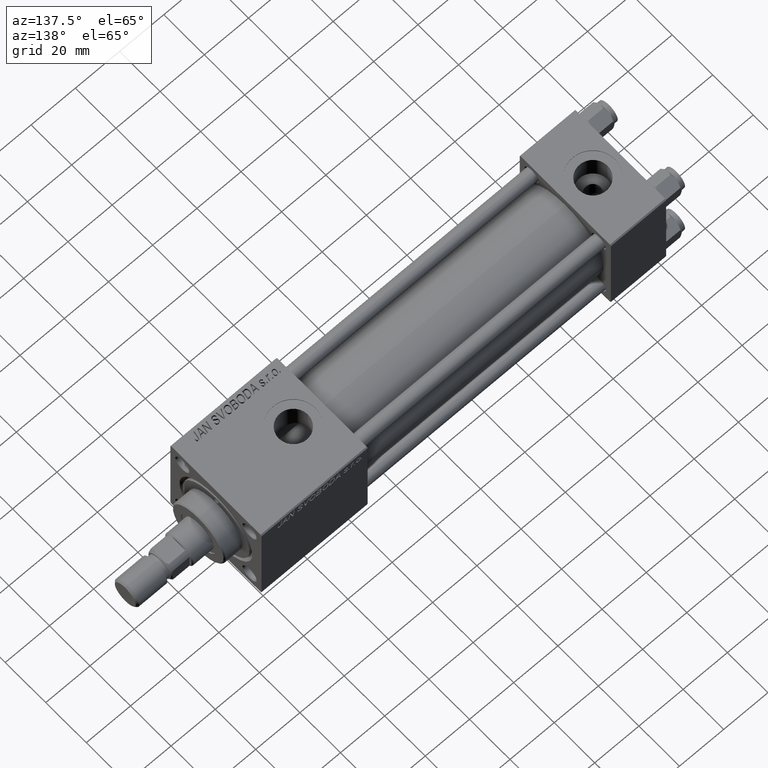
[diagram: clean part render]
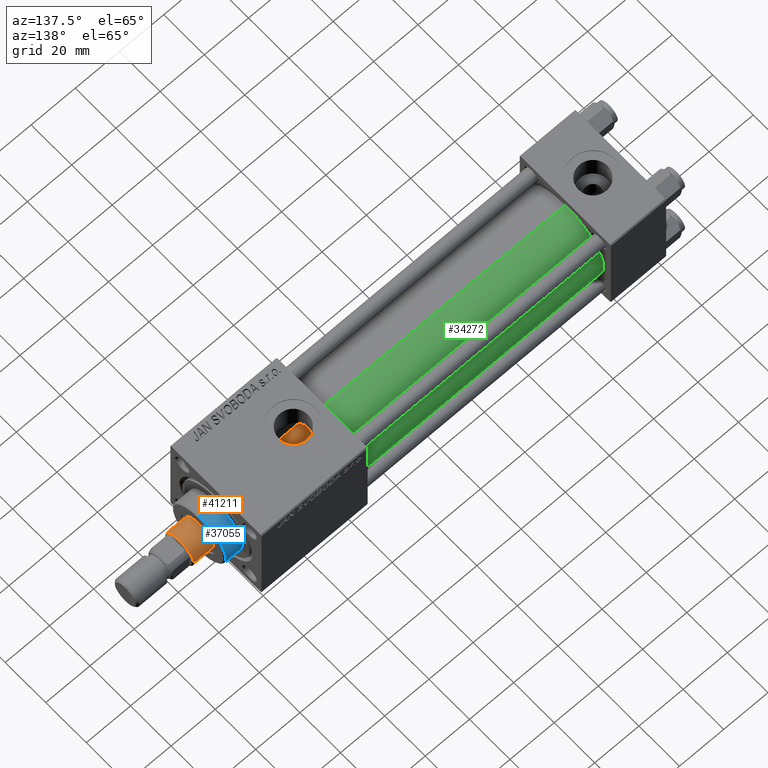
[diagram: same view with three faces highlighted in distinct colors, each labeled with its STEP entity id]
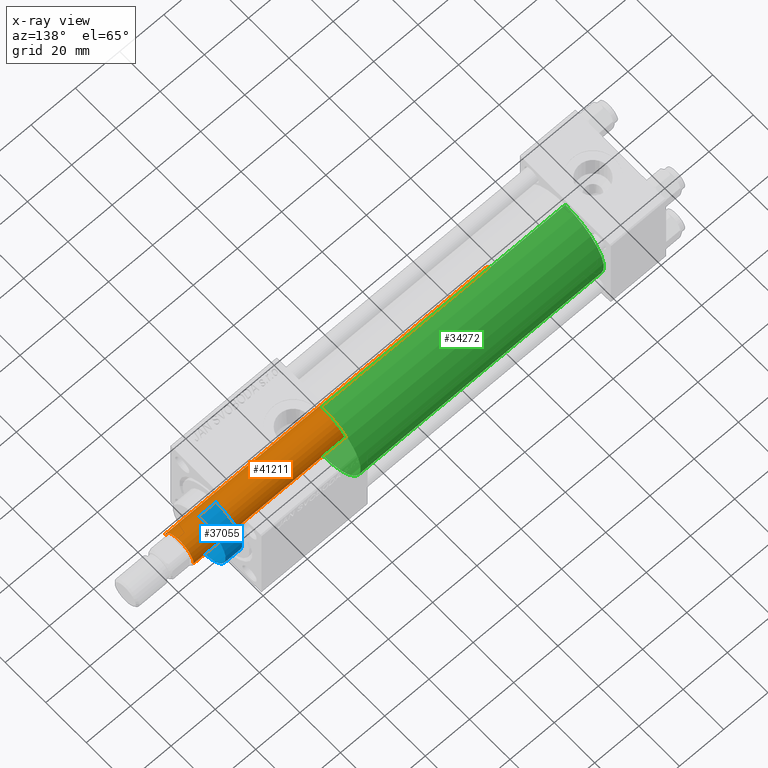
[diagram: x-ray of the same camera — body ghosted, the three highlighted faces saturated]
A machine part, auxiliary view with three faces highlighted in distinct colors.
The next image is the same camera in x-ray (body ghosted, the three faces saturated) — at least one of them is partly hidden behind the body in this view.
Their STEP definitions:

[orange] entity #41211 — the highlighted cylindrical surface (edge-blend (fillet) strip) has radius 7 mm, axis along (-1, 0, 0).
#1202 = LINE ( 'NONE', #33769, #26482 ) ;
#1527 = CIRCLE ( 'NONE', #27102, 7.000000000000000000 ) ;
#6295 = EDGE_CURVE ( 'NONE', #20238, #38164, #1202, .T. ) ;
#13847 = VERTEX_POINT ( 'NONE', #48139 ) ;
#16213 = AXIS2_PLACEMENT_3D ( 'NONE', #47947, #23631, #48465 ) ;
#17274 = LINE ( 'NONE', #25282, #45631 ) ;
#17950 = ORIENTED_EDGE ( 'NONE', *, *, #37512, .F. ) ;
#18031 = EDGE_CURVE ( 'NONE', #13847, #20238, #1527, .T. ) ;
#19367 = FACE_OUTER_BOUND ( 'NONE', #22895, .T. ) ;
#20238 = VERTEX_POINT ( 'NONE', #40562 ) ;
#21082 = CARTESIAN_POINT ( 'NONE',  ( -7.000000000000000000, 0.000000000000000000, 30.00000000000000000 ) ) ;
#21083 = CARTESIAN_POINT ( 'NONE',  ( 0.000000000000000000, 0.000000000000000000, 174.4999999999999716 ) ) ;
#22895 = EDGE_LOOP ( 'NONE', ( #17950, #33034, #31751, #49740 ) ) ;
#23631 = DIRECTION ( 'NONE',  ( -0.000000000000000000, -0.000000000000000000, -1.000000000000000000 ) ) ;
#24089 = CIRCLE ( 'NONE', #52235, 7.000000000000000000 ) ;
#25282 = CARTESIAN_POINT ( 'NONE',  ( 7.000000000000000000, 8.572527594031473190E-16, 175.0000000000000000 ) ) ;
#26482 = VECTOR ( 'NONE', #49543, 1000.000000000000000 ) ;
#27102 = AXIS2_PLACEMENT_3D ( 'NONE', #21083, #29368, #41384 ) ;
#28356 = EDGE_CURVE ( 'NONE', #38164, #37574, #24089, .T. ) ;
#29368 = DIRECTION ( 'NONE',  ( 0.000000000000000000, 0.000000000000000000, -1.000000000000000000 ) ) ;
#31751 = ORIENTED_EDGE ( 'NONE', *, *, #6295, .T. ) ;
#33034 = ORIENTED_EDGE ( 'NONE', *, *, #18031, .T. ) ;
#33769 = CARTESIAN_POINT ( 'NONE',  ( -7.000000000000000000, 0.000000000000000000, 175.0000000000000000 ) ) ;
#37305 = CARTESIAN_POINT ( 'NONE',  ( 7.000000000000000000, 8.572527594031473190E-16, 30.00000000000000000 ) ) ;
#37512 = EDGE_CURVE ( 'NONE', #13847, #37574, #17274, .T. ) ;
#37574 = VERTEX_POINT ( 'NONE', #37305 ) ;
#38164 = VERTEX_POINT ( 'NONE', #21082 ) ;
#38833 = DIRECTION ( 'NONE',  ( -0.000000000000000000, -0.000000000000000000, -1.000000000000000000 ) ) ;
#39068 = DIRECTION ( 'NONE',  ( 0.000000000000000000, 0.000000000000000000, 1.000000000000000000 ) ) ;
#40115 = CARTESIAN_POINT ( 'NONE',  ( 0.000000000000000000, 0.000000000000000000, 30.00000000000000000 ) ) ;
#40562 = CARTESIAN_POINT ( 'NONE',  ( -7.000000000000000000, 0.000000000000000000, 174.4999999999999716 ) ) ;
#41211 = ADVANCED_FACE ( 'NONE', ( #19367 ), #44464, .T. ) ;
#41384 = DIRECTION ( 'NONE',  ( 1.000000000000000000, 0.000000000000000000, 0.000000000000000000 ) ) ;
#44464 = CYLINDRICAL_SURFACE ( 'NONE', #16213, 7.000000000000000000 ) ;
#45631 = VECTOR ( 'NONE', #38833, 1000.000000000000000 ) ;
#47947 = CARTESIAN_POINT ( 'NONE',  ( 0.000000000000000000, 0.000000000000000000, 175.0000000000000000 ) ) ;
#48139 = CARTESIAN_POINT ( 'NONE',  ( 7.000000000000000000, 8.572527594031473190E-16, 174.4999999999999716 ) ) ;
#48465 = DIRECTION ( 'NONE',  ( -1.000000000000000000, 0.000000000000000000, 0.000000000000000000 ) ) ;
#49543 = DIRECTION ( 'NONE',  ( -0.000000000000000000, -0.000000000000000000, -1.000000000000000000 ) ) ;
#49740 = ORIENTED_EDGE ( 'NONE', *, *, #28356, .T. ) ;
#52235 = AXIS2_PLACEMENT_3D ( 'NONE', #40115, #39068, #52411 ) ;
#52411 = DIRECTION ( 'NONE',  ( 1.000000000000000000, 0.000000000000000000, 0.000000000000000000 ) ) ;

[blue] entity #37055 — the highlighted cylindrical surface (partial cylindrical patch) has radius 13 mm, axis along (-1, -0, -0).
#985 = LINE ( 'NONE', #12461, #31791 ) ;
#2441 = DIRECTION ( 'NONE',  ( -1.000000000000000000, 0.000000000000000000, 0.000000000000000000 ) ) ;
#3263 = ORIENTED_EDGE ( 'NONE', *, *, #32391, .F. ) ;
#7226 = FACE_OUTER_BOUND ( 'NONE', #17408, .T. ) ;
#8657 = VECTOR ( 'NONE', #21928, 1000.000000000000000 ) ;
#10428 = CARTESIAN_POINT ( 'NONE',  ( 13.00000000000000178, 1.592040838891559293E-15, 36.69999999999999574 ) ) ;
#10665 = DIRECTION ( 'NONE',  ( 0.000000000000000000, 0.000000000000000000, 1.000000000000000000 ) ) ;
#11465 = ORIENTED_EDGE ( 'NONE', *, *, #34199, .T. ) ;
#11631 = CARTESIAN_POINT ( 'NONE',  ( 13.00000000000000178, 1.592040838891559293E-15, 36.20000000000000995 ) ) ;
#11753 = CARTESIAN_POINT ( 'NONE',  ( 0.000000000000000000, 0.000000000000000000, 36.20000000000000995 ) ) ;
#12461 = CARTESIAN_POINT ( 'NONE',  ( -13.00000000000000178, 0.000000000000000000, 36.69999999999999574 ) ) ;
#12464 = ORIENTED_EDGE ( 'NONE', *, *, #44937, .T. ) ;
#14166 = VERTEX_POINT ( 'NONE', #21069 ) ;
#16495 = AXIS2_PLACEMENT_3D ( 'NONE', #11753, #23003, #19788 ) ;
#17408 = EDGE_LOOP ( 'NONE', ( #11465, #12464, #19960, #3263 ) ) ;
#18183 = LINE ( 'NONE', #10428, #8657 ) ;
#19788 = DIRECTION ( 'NONE',  ( 1.000000000000000000, 0.000000000000000000, 0.000000000000000000 ) ) ;
#19960 = ORIENTED_EDGE ( 'NONE', *, *, #20696, .T. ) ;
#20696 = EDGE_CURVE ( 'NONE', #37459, #14166, #24612, .T. ) ;
#21031 = CARTESIAN_POINT ( 'NONE',  ( 13.00000000000000178, 1.592040838891559293E-15, 28.69999999999999929 ) ) ;
#21069 = CARTESIAN_POINT ( 'NONE',  ( -13.00000000000000178, 0.000000000000000000, 28.69999999999999929 ) ) ;
#21928 = DIRECTION ( 'NONE',  ( -0.000000000000000000, -0.000000000000000000, -1.000000000000000000 ) ) ;
#22702 = CARTESIAN_POINT ( 'NONE',  ( 0.000000000000000000, 0.000000000000000000, 28.69999999999999929 ) ) ;
#23003 = DIRECTION ( 'NONE',  ( 0.000000000000000000, 0.000000000000000000, -1.000000000000000000 ) ) ;
#23309 = VERTEX_POINT ( 'NONE', #45687 ) ;
#23438 = AXIS2_PLACEMENT_3D ( 'NONE', #39022, #39812, #2441 ) ;
#23523 = CYLINDRICAL_SURFACE ( 'NONE', #23438, 13.00000000000000178 ) ;
#24612 = CIRCLE ( 'NONE', #31445, 13.00000000000000178 ) ;
#26412 = DIRECTION ( 'NONE',  ( 1.000000000000000000, 0.000000000000000000, 0.000000000000000000 ) ) ;
#31445 = AXIS2_PLACEMENT_3D ( 'NONE', #22702, #10665, #26412 ) ;
#31791 = VECTOR ( 'NONE', #45592, 1000.000000000000000 ) ;
#32391 = EDGE_CURVE ( 'NONE', #23309, #14166, #985, .T. ) ;
#34199 = EDGE_CURVE ( 'NONE', #23309, #40289, #48909, .T. ) ;
#37055 = ADVANCED_FACE ( 'NONE', ( #7226 ), #23523, .T. ) ;
#37459 = VERTEX_POINT ( 'NONE', #21031 ) ;
#39022 = CARTESIAN_POINT ( 'NONE',  ( 0.000000000000000000, 0.000000000000000000, 36.69999999999999574 ) ) ;
#39812 = DIRECTION ( 'NONE',  ( -0.000000000000000000, -0.000000000000000000, -1.000000000000000000 ) ) ;
#40289 = VERTEX_POINT ( 'NONE', #11631 ) ;
#44937 = EDGE_CURVE ( 'NONE', #40289, #37459, #18183, .T. ) ;
#45592 = DIRECTION ( 'NONE',  ( -0.000000000000000000, -0.000000000000000000, -1.000000000000000000 ) ) ;
#45687 = CARTESIAN_POINT ( 'NONE',  ( -13.00000000000000178, 0.000000000000000000, 36.20000000000000995 ) ) ;
#48909 = CIRCLE ( 'NONE', #16495, 13.00000000000000178 ) ;

[green] entity #34272 — the highlighted cylindrical surface (partial cylindrical patch) has radius 19 mm, axis along (-1, -0, -0).
#285 = CYLINDRICAL_SURFACE ( 'NONE', #9667, 19.00000000000000000 ) ;
#732 = EDGE_LOOP ( 'NONE', ( #40382, #8878, #11983, #49333 ) ) ;
#798 = FACE_OUTER_BOUND ( 'NONE', #732, .T. ) ;
#3010 = VERTEX_POINT ( 'NONE', #47278 ) ;
#3759 = DIRECTION ( 'NONE',  ( 0.000000000000000000, 0.000000000000000000, 1.000000000000000000 ) ) ;
#6129 = CIRCLE ( 'NONE', #47101, 19.00000000000000000 ) ;
#8878 = ORIENTED_EDGE ( 'NONE', *, *, #43684, .T. ) ;
#9282 = EDGE_CURVE ( 'NONE', #13788, #3010, #6129, .T. ) ;
#9667 = AXIS2_PLACEMENT_3D ( 'NONE', #36855, #37376, #3759 ) ;
#10922 = CIRCLE ( 'NONE', #39954, 19.00000000000000000 ) ;
#11983 = ORIENTED_EDGE ( 'NONE', *, *, #18656, .T. ) ;
#12052 = CARTESIAN_POINT ( 'NONE',  ( 135.0000000000000000, -2.752562955852396712E-16, -19.00000000000000000 ) ) ;
#13788 = VERTEX_POINT ( 'NONE', #12052 ) ;
#14062 = CARTESIAN_POINT ( 'NONE',  ( 24.99999999999999289, -2.602085213965210642E-15, 0.000000000000000000 ) ) ;
#14427 = CARTESIAN_POINT ( 'NONE',  ( 24.99999999999999289, -2.602085213965210642E-15, 19.00000000000000000 ) ) ;
#18656 = EDGE_CURVE ( 'NONE', #47635, #27794, #10922, .T. ) ;
#18974 = CARTESIAN_POINT ( 'NONE',  ( 135.0000000000000000, -2.602085213965210642E-15, 0.000000000000000000 ) ) ;
#23368 = DIRECTION ( 'NONE',  ( -1.000000000000000000, -0.000000000000000000, -0.000000000000000000 ) ) ;
#26333 = DIRECTION ( 'NONE',  ( 0.000000000000000000, 0.000000000000000000, 1.000000000000000000 ) ) ;
#26527 = EDGE_CURVE ( 'NONE', #3010, #27794, #30244, .T. ) ;
#27794 = VERTEX_POINT ( 'NONE', #14427 ) ;
#29465 = DIRECTION ( 'NONE',  ( -1.000000000000000000, -0.000000000000000000, -0.000000000000000000 ) ) ;
#30244 = LINE ( 'NONE', #37995, #43643 ) ;
#32163 = CARTESIAN_POINT ( 'NONE',  ( 135.0000000000000000, -2.752562955852396712E-16, -19.00000000000000000 ) ) ;
#34272 = ADVANCED_FACE ( 'NONE', ( #798 ), #285, .T. ) ;
#35518 = DIRECTION ( 'NONE',  ( 0.000000000000000000, 0.000000000000000000, -1.000000000000000000 ) ) ;
#36172 = LINE ( 'NONE', #32163, #46189 ) ;
#36855 = CARTESIAN_POINT ( 'NONE',  ( 135.0000000000000000, -2.602085213965210642E-15, 0.000000000000000000 ) ) ;
#37376 = DIRECTION ( 'NONE',  ( -1.000000000000000000, -0.000000000000000000, -0.000000000000000000 ) ) ;
#37995 = CARTESIAN_POINT ( 'NONE',  ( 135.0000000000000000, -2.602085213965210642E-15, 19.00000000000000000 ) ) ;
#39954 = AXIS2_PLACEMENT_3D ( 'NONE', #14062, #46650, #26333 ) ;
#40382 = ORIENTED_EDGE ( 'NONE', *, *, #9282, .F. ) ;
#43643 = VECTOR ( 'NONE', #29465, 1000.000000000000000 ) ;
#43684 = EDGE_CURVE ( 'NONE', #13788, #47635, #36172, .T. ) ;
#46189 = VECTOR ( 'NONE', #23368, 1000.000000000000000 ) ;
#46650 = DIRECTION ( 'NONE',  ( 1.000000000000000000, -0.000000000000000000, 0.000000000000000000 ) ) ;
#47101 = AXIS2_PLACEMENT_3D ( 'NONE', #18974, #47547, #35518 ) ;
#47278 = CARTESIAN_POINT ( 'NONE',  ( 135.0000000000000000, -2.602085213965210642E-15, 19.00000000000000000 ) ) ;
#47547 = DIRECTION ( 'NONE',  ( 1.000000000000000000, 0.000000000000000000, 0.000000000000000000 ) ) ;
#47635 = VERTEX_POINT ( 'NONE', #50812 ) ;
#49333 = ORIENTED_EDGE ( 'NONE', *, *, #26527, .F. ) ;
#50812 = CARTESIAN_POINT ( 'NONE',  ( 24.99999999999999289, -2.752562955852396712E-16, -19.00000000000000000 ) ) ;